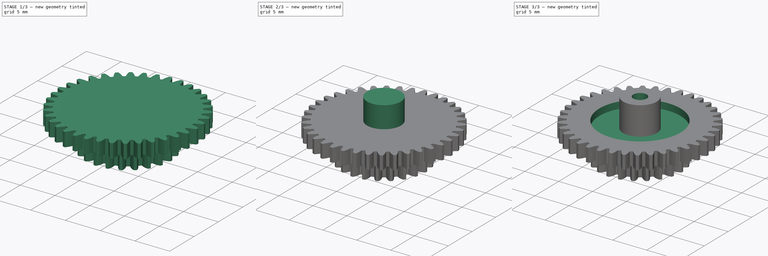
[diagram: build sequence overview — one tinted view per stage of 3, left to right]
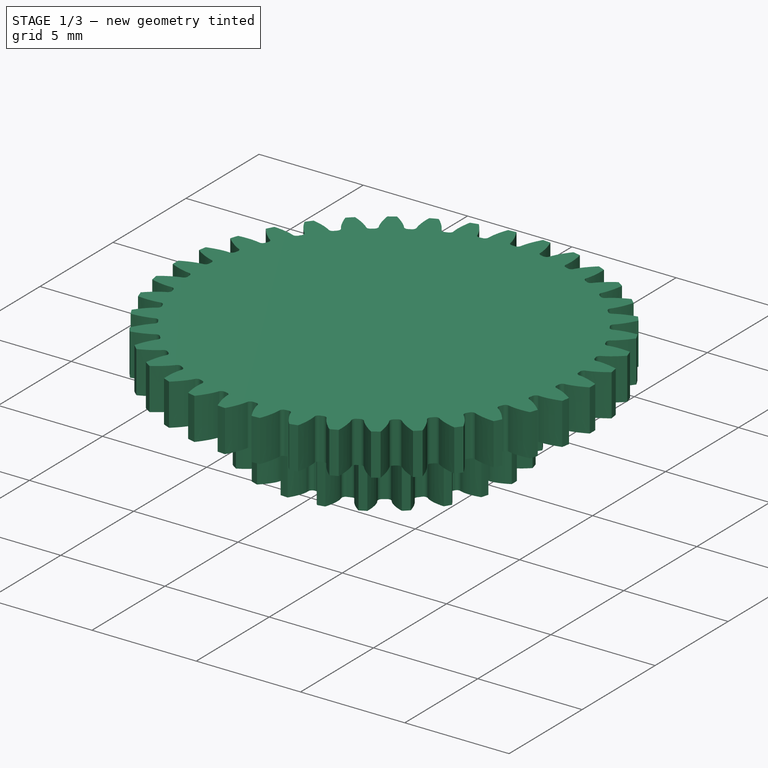
[diagram: stage 1 of 3 — iso view after this stage's code; geometry added in this stage tinted green]
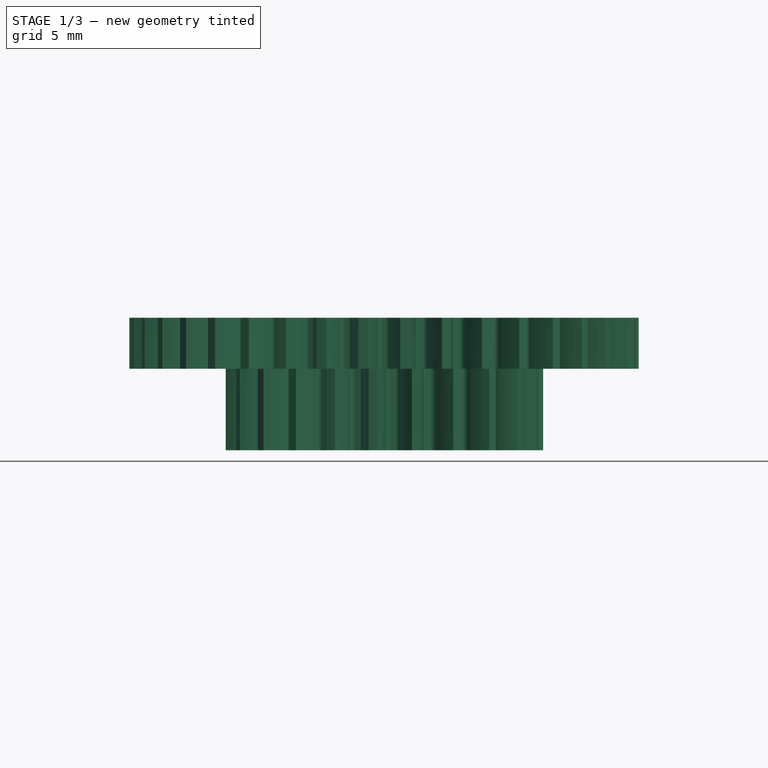
[diagram: stage 1 of 3 — front view after this stage's code; geometry added in this stage tinted green]
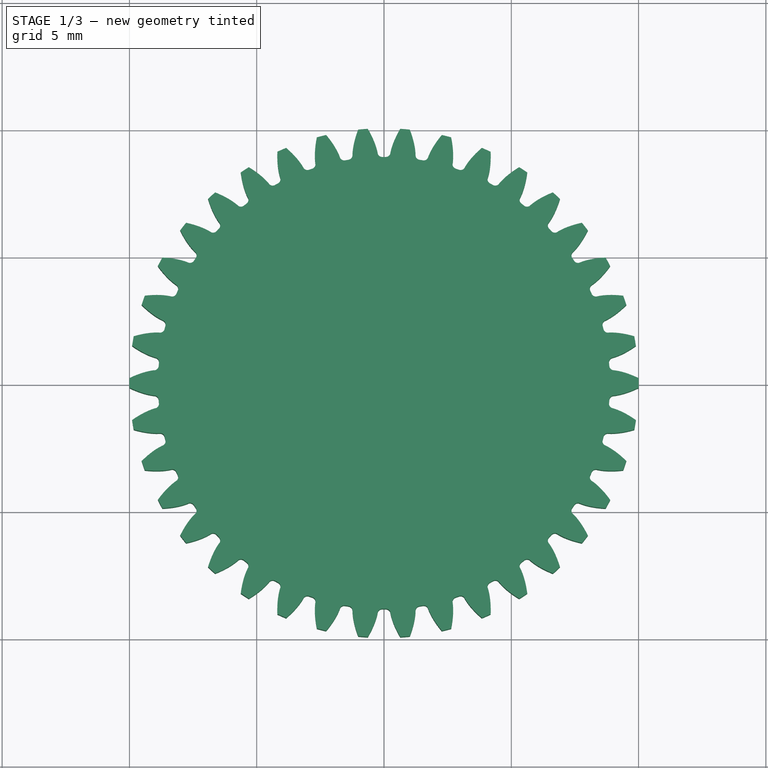
[diagram: stage 1 of 3 — top view after this stage's code; geometry added in this stage tinted green]
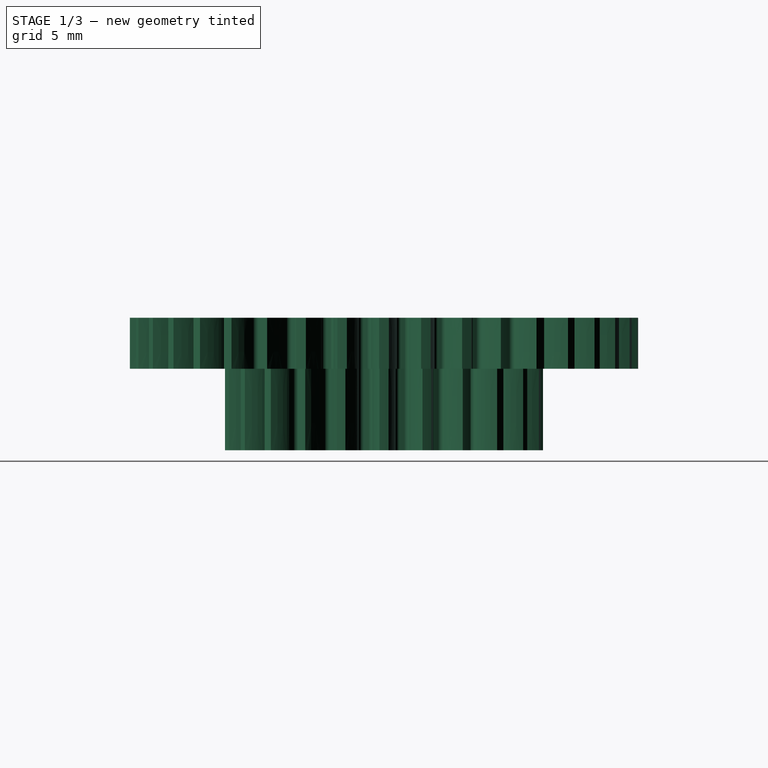
[diagram: stage 1 of 3 — right view after this stage's code; geometry added in this stage tinted green]
FCSTD DOCUMENT  (FreeCAD 0.16R6557 (Git))
Label: Gears2
License: CreativeCommons Attribution-ShareAlike
LicenseURL: http://creativecommons.org/licenses/by-sa/4.0/
objects: PartDesign::Pad×3, Sketcher::SketchObject×3, Part::Part2DObjectPython×2, PartDesign::Pocket×2, Part::MultiFuse×1, Part::Feature×1
note: 17 computed .brp shape members not serialized (recipe doc carries the construction recipe); baked Part::Feature solids carry a one-line shape summary decoded from their .brp

FEATURE [Part::Part2DObjectPython] InvoluteGear  label="23teethGearSketch"  # Draft 2D object (typed FeaturePython)
  ExternalGear = true
  HighPrecision = true
  Modules = 0.5
  NumberOfTeeth = 23
  PressureAngle = 20
FEATURE [PartDesign::Pad] Pad  label="23Teeth-ExtrudedGear"
  Length = 3.2
  Length2 = 100
  Sketch = -> InvoluteGear
  Type = 0
FEATURE [Part::Part2DObjectPython] InvoluteGear001  label="38teethGearSketch"  # Draft 2D object (typed FeaturePython)
  ExternalGear = true
  HighPrecision = true
  Modules = 0.5
  NumberOfTeeth = 38
  Placement = pos=(0,0,3.2) rot=(0,0,1;0rad)
  PressureAngle = 20
FEATURE [PartDesign::Pad] Pad001  label="38Teeth-ExtrudedGear"
  Length = 2
  Length2 = 100
  Placement = pos=(0,0,3.2) rot=(0,0,1;0rad)
  Sketch = -> InvoluteGear001
  Type = 0
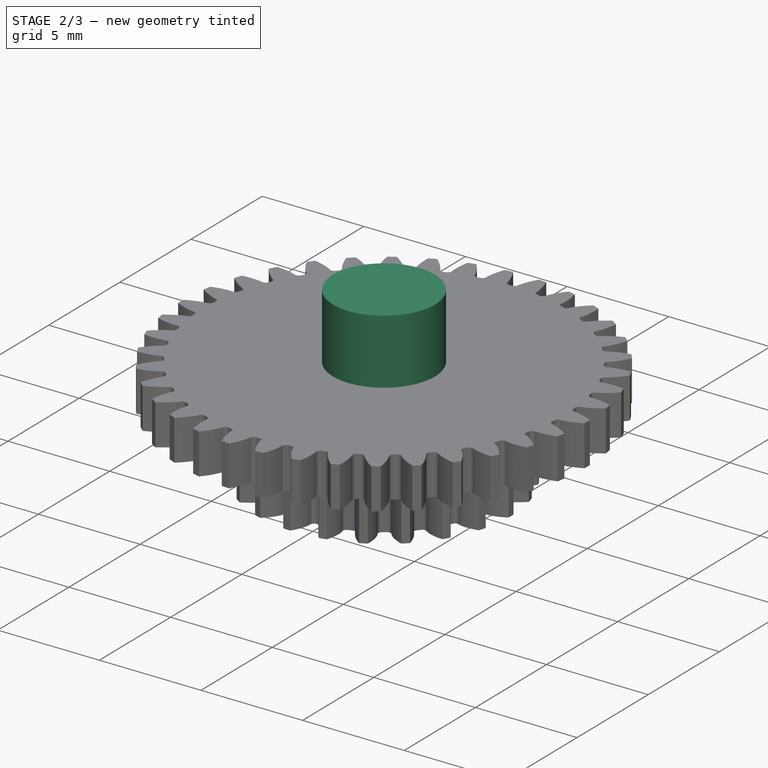
[diagram: stage 2 of 3 — iso view after this stage's code; geometry added in this stage tinted green]
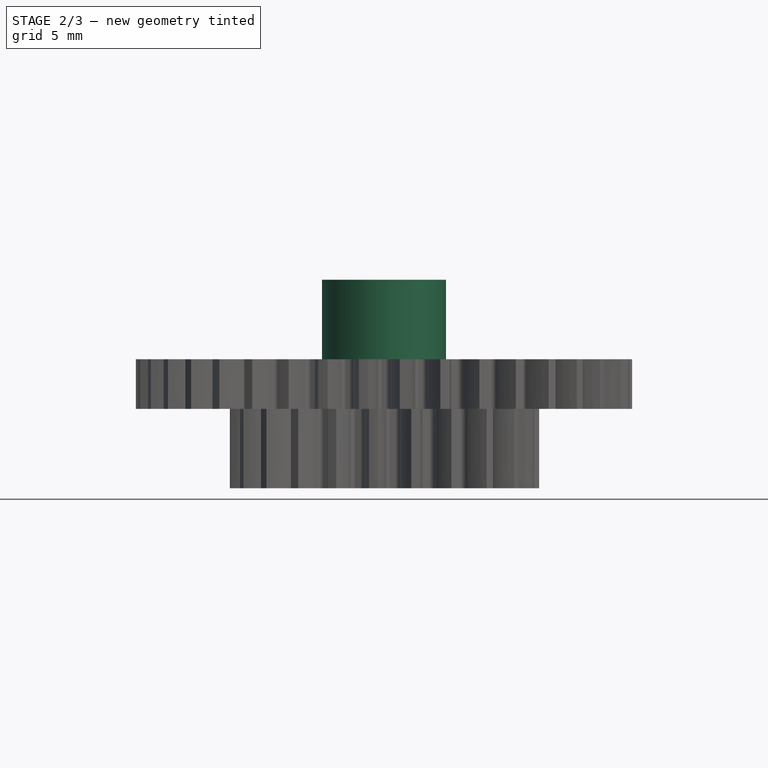
[diagram: stage 2 of 3 — front view after this stage's code; geometry added in this stage tinted green]
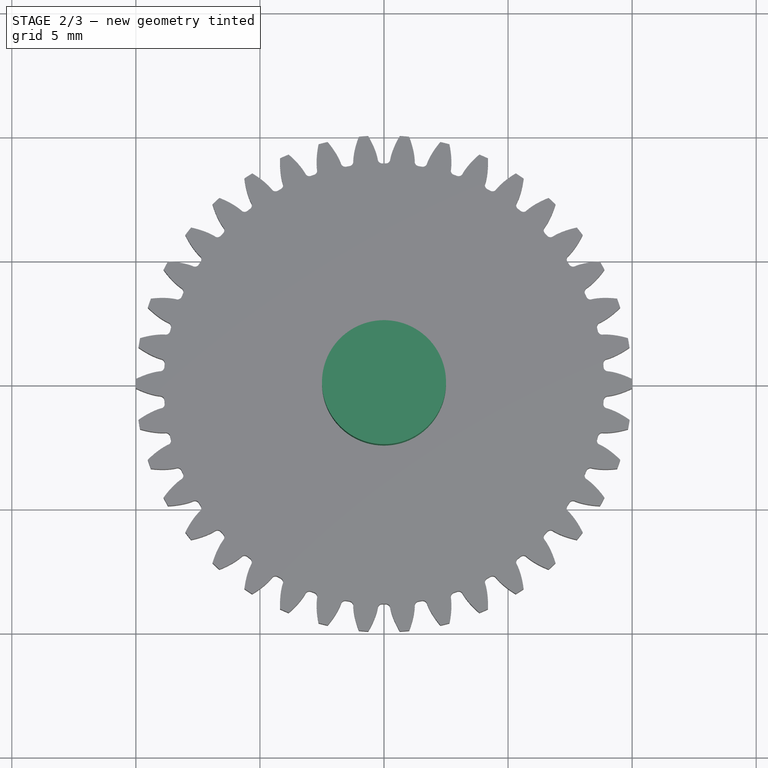
[diagram: stage 2 of 3 — top view after this stage's code; geometry added in this stage tinted green]
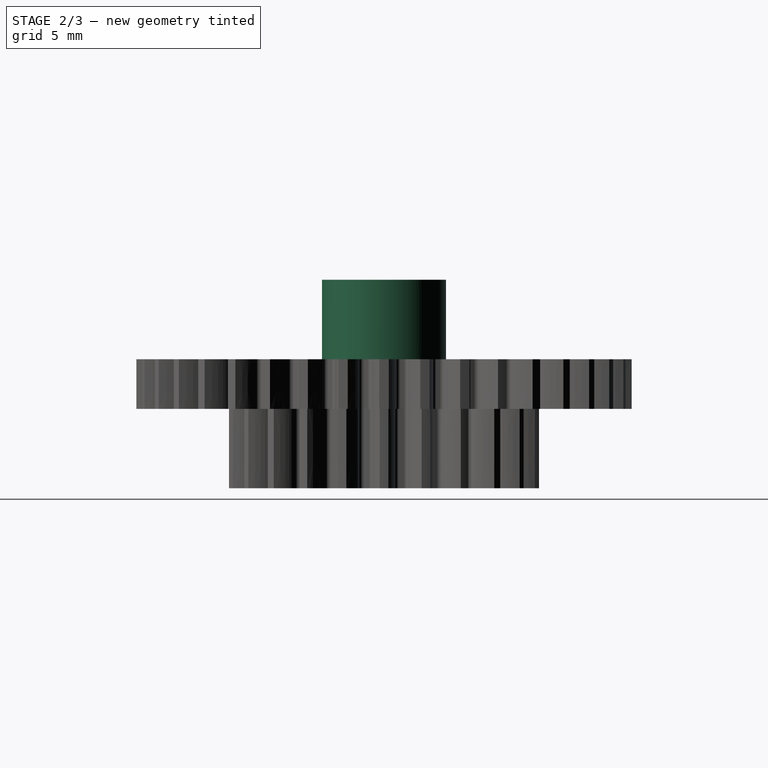
[diagram: stage 2 of 3 — right view after this stage's code; geometry added in this stage tinted green]
FEATURE [Part::MultiFuse] Fusion  label="GearsFusion"
  Shapes = -> [Pad001,Pad]
FEATURE [Sketcher::SketchObject] Sketch  label="ShaftBodySketch"
  Placement = pos=(0,0,5.2) rot=(0,0,1;0rad)
  Support = -> Fusion [Face5]
  sketch-geometry (1):
    g0: Circle CenterX=0 CenterY=0 CenterZ=0 NormalX=0 NormalY=0 NormalZ=1 Radius=2.5
  constraints (2):
    c: Radius(g0) = 2.5
    c: Coincident(g0,g-1)
FEATURE [PartDesign::Pad] Pad002  label="ExtrudedShaftBody"
  Length = 3.2
  Length2 = 100
  Sketch = -> Sketch
  Type = 0
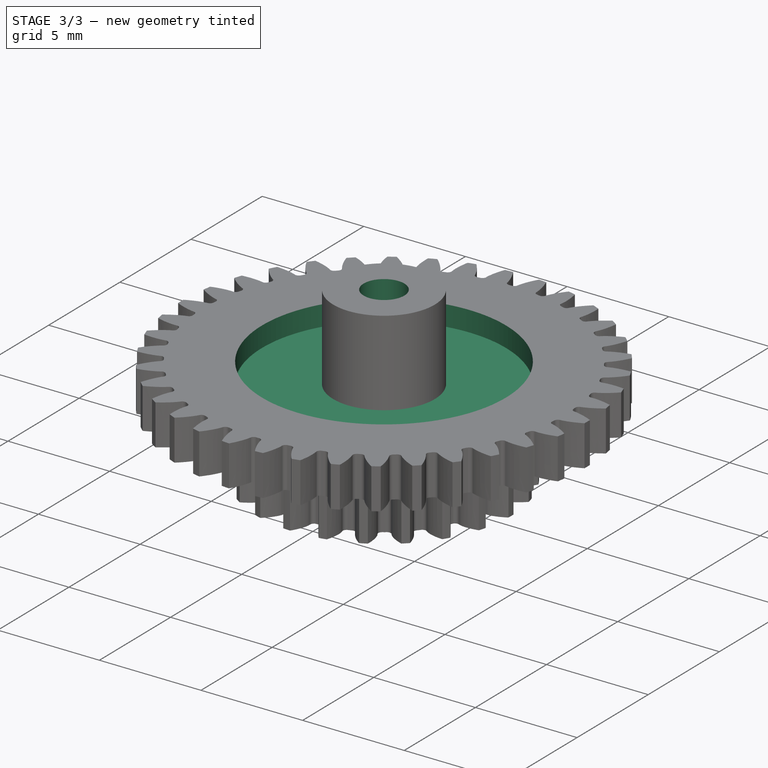
[diagram: stage 3 of 3 — iso view after this stage's code; geometry added in this stage tinted green]
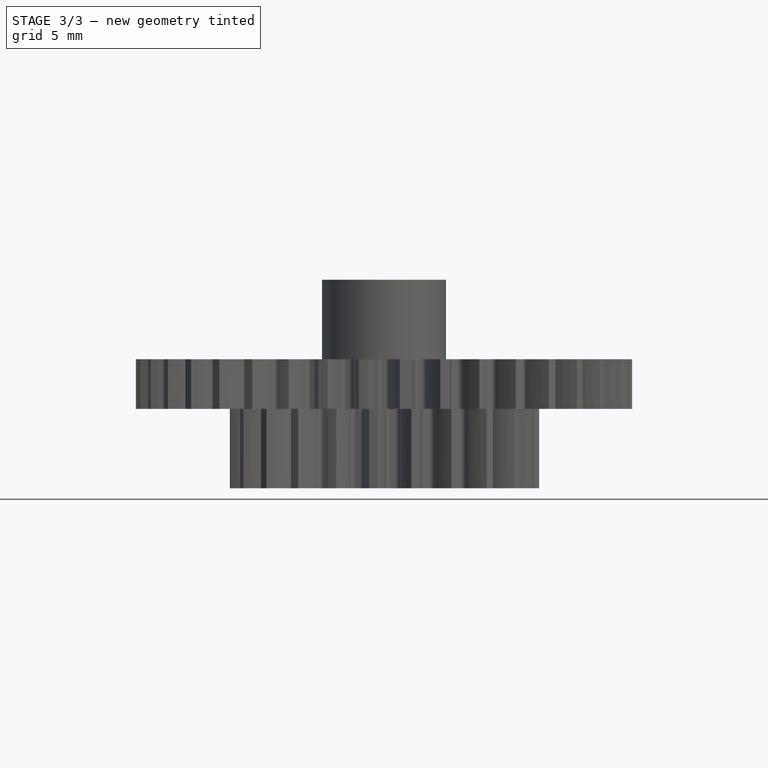
[diagram: stage 3 of 3 — front view after this stage's code; geometry added in this stage tinted green]
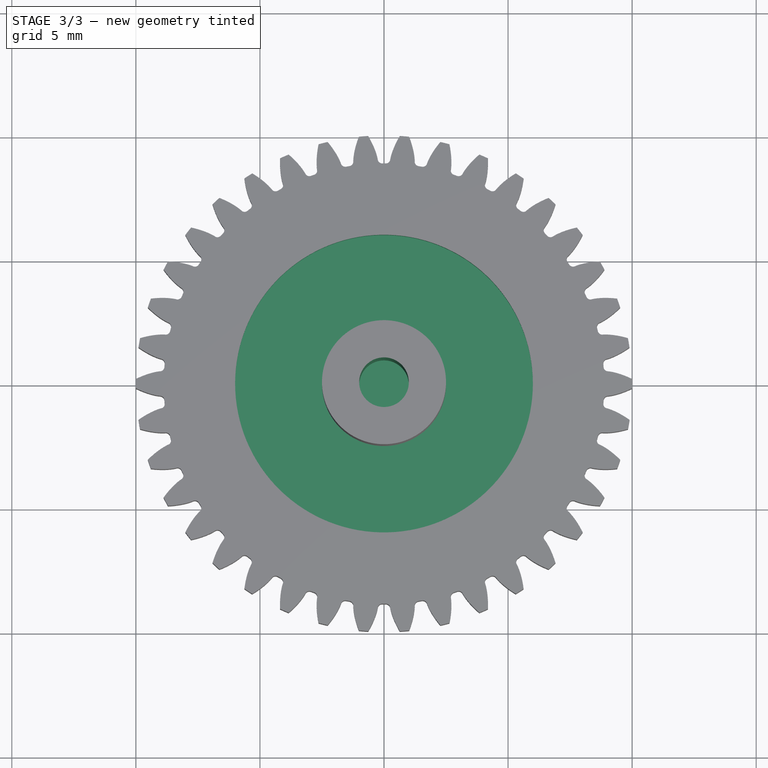
[diagram: stage 3 of 3 — top view after this stage's code; geometry added in this stage tinted green]
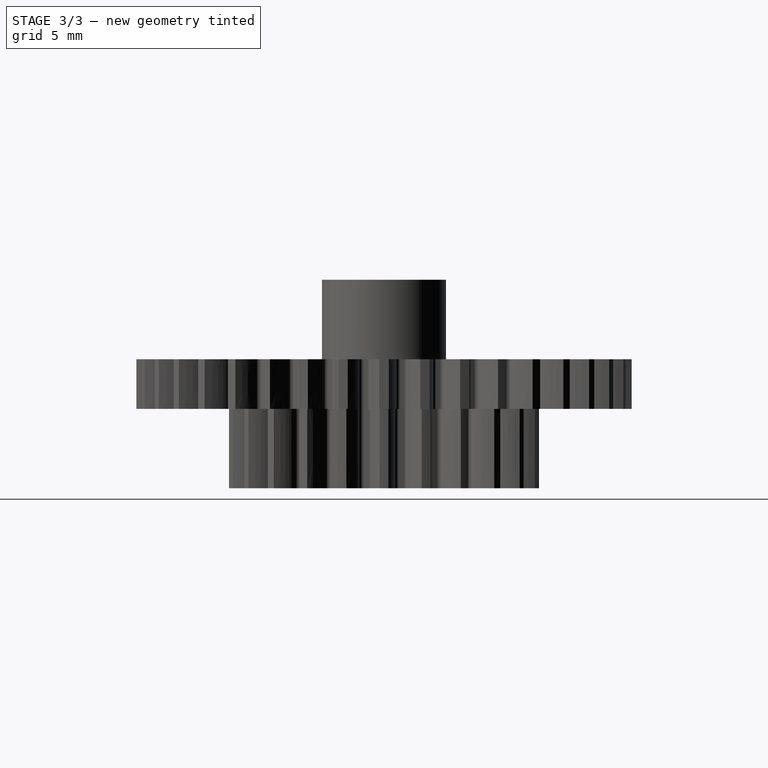
[diagram: stage 3 of 3 — right view after this stage's code; geometry added in this stage tinted green]
FEATURE [Sketcher::SketchObject] Sketch001  label="ShaftHoleSketch"
  Placement = pos=(0,0,8.4) rot=(0,0,1;0rad)
  Support = -> Pad002 [Face1]
  sketch-geometry (1):
    g0: Circle CenterX=0 CenterY=0 CenterZ=0 NormalX=0 NormalY=0 NormalZ=1 Radius=1
  constraints (2):
    c: Coincident(g0,g-1)
    c: Radius(g0) = 1
FEATURE [PartDesign::Pocket] Pocket  label="ShaftHole"
  Length = 7
  Sketch = -> Sketch001
  Type = 0
FEATURE [Sketcher::SketchObject] Sketch002  label="WeightHoleSketch"
  ExternalGeometry = -> [Pocket]
  Placement = pos=(0,0,5.2) rot=(0,0,1;0rad)
  Support = -> Pocket [Face4]
  sketch-geometry (2):
    g0: Circle CenterX=0 CenterY=0 CenterZ=0 NormalX=0 NormalY=0 NormalZ=1 Radius=2.5
    g1: Circle CenterX=0 CenterY=0 CenterZ=0 NormalX=0 NormalY=0 NormalZ=1 Radius=6
  constraints (4):
    c: Coincident(g0,g-1)
    c: Equal(g0,g-3)
    c: Coincident(g1,g-1)
    c: Radius(g1) = 6
FEATURE [PartDesign::Pocket] Pocket001  label="WeightHole"
  Length = 1
  Sketch = -> Sketch002
  Type = 0
FEATURE [Part::Feature] Pocket001001  label="Gear"
  shape: bbox 20 x 19.96 x 8.4 mm, 543 faces (baked)
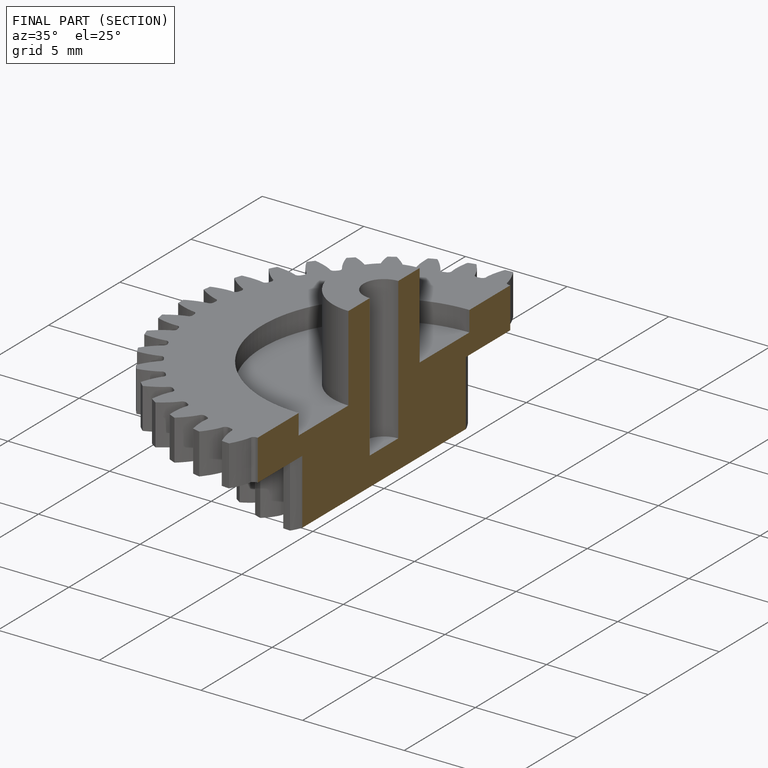
[diagram: finished part — half-section view (interior)]
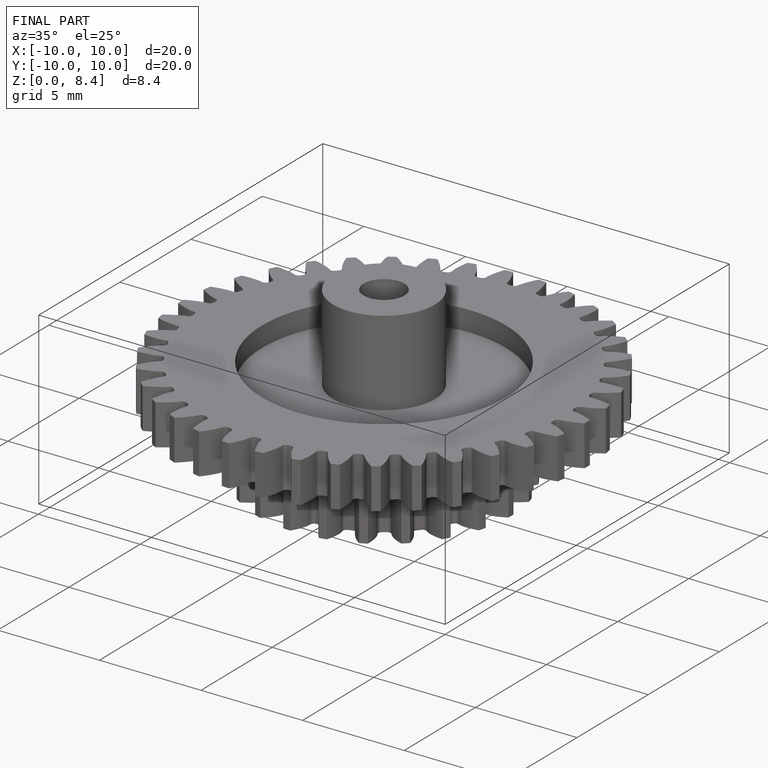
[diagram: finished part — iso view with bounding-box wireframe]
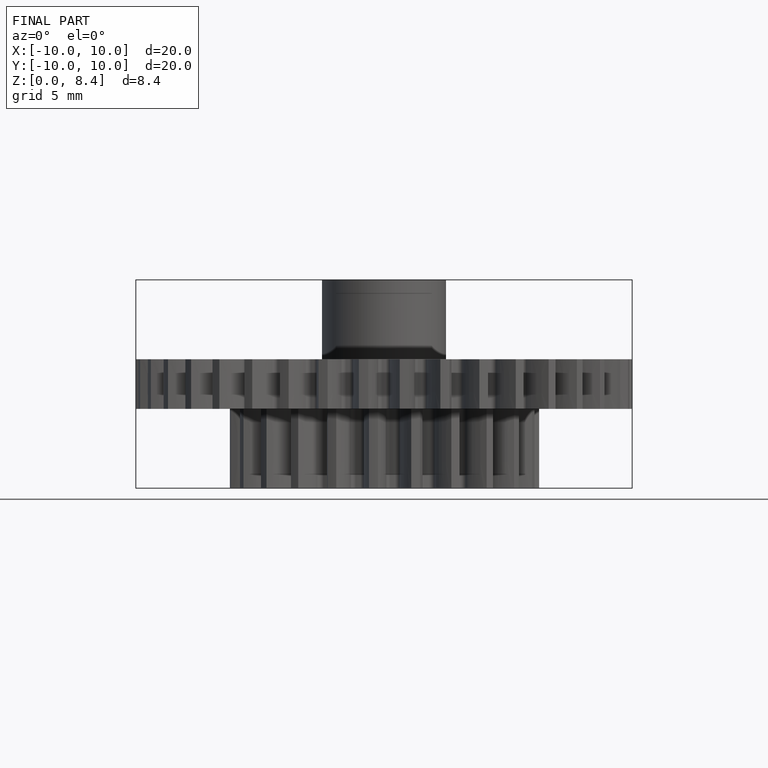
[diagram: finished part — front view with bounding-box wireframe]
